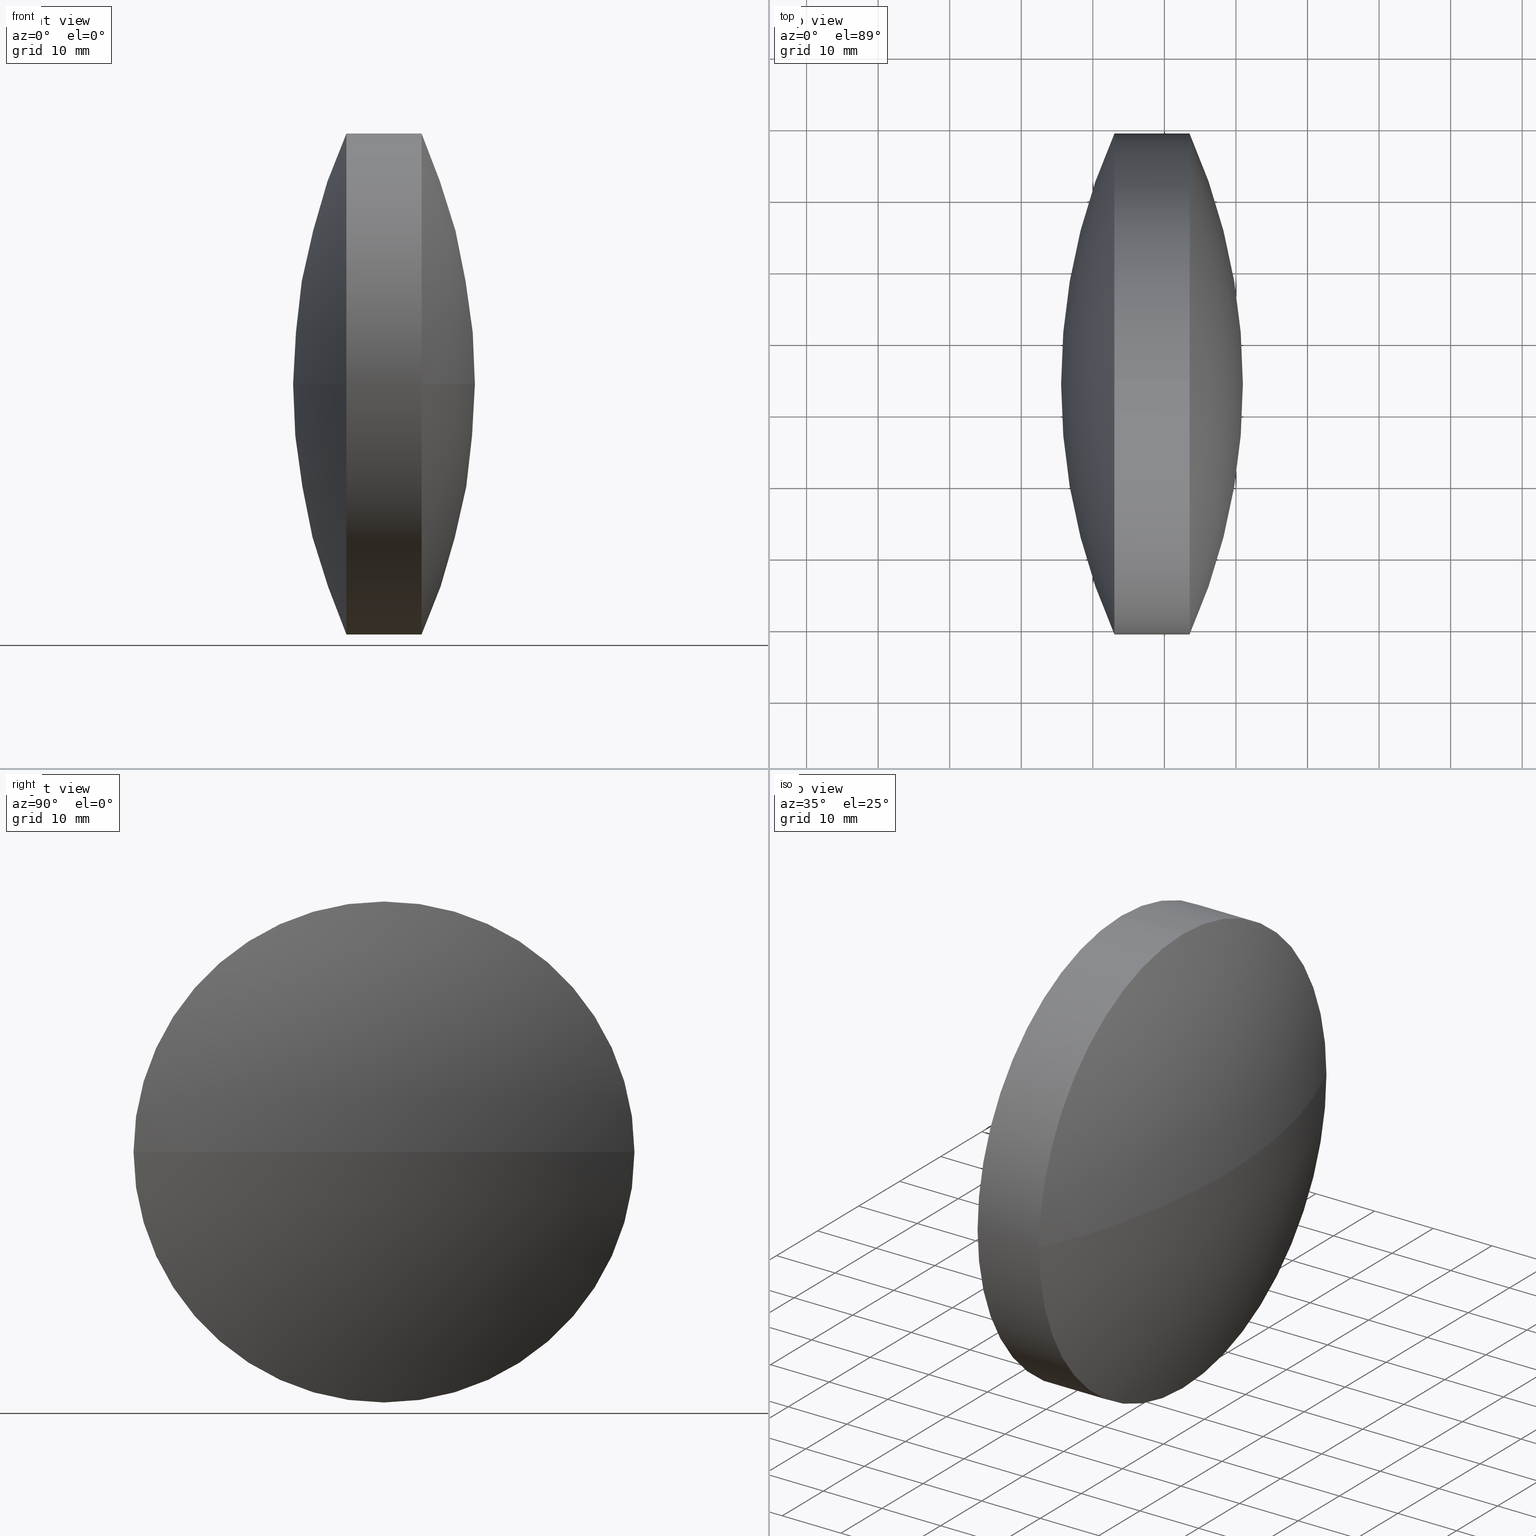
[diagram: canonical four-view strip — front | top / right | iso, engineering-drawing reading convention]
A machine part, canonical four-view strip (front | top / right | iso — engineering-drawing reading convention). The complete STEP part file that produces these views, byte-faithful:
ISO-10303-21;
HEADER;
FILE_DESCRIPTION (( 'STEP AP203' ),
    '1' );
FILE_NAME ('110010.STEP',
    '2019-06-24T09:36:01',
    ( '' ),
    ( '' ),
    'SwSTEP 2.0',
    'SolidWorks 2016',
    '' );
FILE_SCHEMA (( 'CONFIG_CONTROL_DESIGN' ));
ENDSEC;

DATA;
#1 = DATE_AND_TIME ( #64, #320 ) ;
#2 = DIRECTION ( 'NONE',  ( 0.0000000000000000000, 0.0000000000000000000, 1.000000000000000000 ) ) ;
#3 = FACE_OUTER_BOUND ( 'NONE', #324, .T. ) ;
#4 = CC_DESIGN_DATE_AND_TIME_ASSIGNMENT ( #25, #335, ( #279 ) ) ;
#5 = VERTEX_POINT ( 'NONE', #218 ) ;
#6 = DIRECTION ( 'NONE',  ( -1.000000000000000000, -0.0000000000000000000, -0.0000000000000000000 ) ) ;
#7 = PRODUCT_DEFINITION_SHAPE ( 'NONE', 'NONE',  #279 ) ;
#8 = DIRECTION ( 'NONE',  ( -1.000000000000000000, -0.0000000000000000000, -0.0000000000000000000 ) ) ;
#9 = CC_DESIGN_PERSON_AND_ORGANIZATION_ASSIGNMENT ( #318, #72, ( #57 ) ) ;
#10 = CARTESIAN_POINT ( 'NONE',  ( 233.0206127648180000, 133.9814138434226200, 0.0000000000000000000 ) ) ;
#11 = EDGE_CURVE ( 'NONE', #267, #221, #209, .T. ) ;
#12 = ORIENTED_EDGE ( 'NONE', *, *, #314, .T. ) ;
#13 = DIRECTION ( 'NONE',  ( 0.0000000000000000000, 0.0000000000000000000, 1.000000000000000000 ) ) ;
#14 = PERSON_AND_ORGANIZATION ( #70, #173 ) ;
#15 = SPHERICAL_SURFACE ( 'NONE', #102, 85.92725649641434400 ) ;
#16 = VERTEX_POINT ( 'NONE', #143 ) ;
#17 = AXIS2_PLACEMENT_3D ( 'NONE', #37, #92, #155 ) ;
#18 = CARTESIAN_POINT ( 'NONE',  ( 165.0445437437425100, 133.9814138434226400, 0.0000000000000000000 ) ) ;
#19 = AXIS2_PLACEMENT_3D ( 'NONE', #68, #199, #13 ) ;
#20 =( NAMED_UNIT ( * ) SI_UNIT ( $, .STERADIAN. ) SOLID_ANGLE_UNIT ( ) );
#21 = PERSON_AND_ORGANIZATION ( #70, #173 ) ;
#22 = PERSON_AND_ORGANIZATION_ROLE ( 'design_supplier' ) ;
#23 = ORIENTED_EDGE ( 'NONE', *, *, #59, .F. ) ;
#24 = APPROVAL_ROLE ( '' ) ;
#25 = DATE_AND_TIME ( #138, #171 ) ;
#26 = CIRCLE ( 'NONE', #265, 35.00000000000000000 ) ;
#27 = EDGE_CURVE ( 'NONE', #16, #85, #194, .T. ) ;
#28 = APPROVAL_DATE_TIME ( #274, #343 ) ;
#29 = CIRCLE ( 'NONE', #244, 35.00000000000000000 ) ;
#30 = EDGE_LOOP ( 'NONE', ( #110, #12, #140, #119 ) ) ;
#31 = DIRECTION ( 'NONE',  ( 0.0000000000000000000, 0.0000000000000000000, 1.000000000000000000 ) ) ;
#32 = DIRECTION ( 'NONE',  ( -1.000000000000000000, -0.0000000000000000000, -0.0000000000000000000 ) ) ;
#33 = CC_DESIGN_APPROVAL ( #269, ( #304 ) ) ;
#34 = AXIS2_PLACEMENT_3D ( 'NONE', #18, #125, #222 ) ;
#35 = CARTESIAN_POINT ( 'NONE',  ( 222.8966066484798600, 133.9814138434226200, -35.00000000000000000 ) ) ;
#36 = ORIENTED_EDGE ( 'NONE', *, *, #27, .F. ) ;
#37 = CARTESIAN_POINT ( 'NONE',  ( 0.0000000000000000000, 0.0000000000000000000, 0.0000000000000000000 ) ) ;
#38 = ADVANCED_BREP_SHAPE_REPRESENTATION ( '110010', ( #212, #17 ), #177 ) ;
#39 = DIRECTION ( 'NONE',  ( -1.000000000000000000, -0.0000000000000000000, -0.0000000000000000000 ) ) ;
#40 = VERTEX_POINT ( 'NONE', #137 ) ;
#41 = DIRECTION ( 'NONE',  ( -1.000000000000000000, 0.0000000000000000000, 0.0000000000000000000 ) ) ;
#42 = DIRECTION ( 'NONE',  ( 0.0000000000000000000, 1.000000000000000000, 1.224646799147353000E-016 ) ) ;
#43 = PERSON_AND_ORGANIZATION_ROLE ( 'design_owner' ) ;
#44 = LINE ( 'NONE', #95, #295 ) ;
#45 = CYLINDRICAL_SURFACE ( 'NONE', #217, 35.00000000000000000 ) ;
#46 = APPLICATION_CONTEXT ( 'configuration controlled 3d designs of mechanical parts and assemblies' ) ;
#47 = ADVANCED_FACE ( 'NONE', ( #334 ), #45, .T. ) ;
#48 = AXIS2_PLACEMENT_3D ( 'NONE', #276, #66, #122 ) ;
#49 = APPROVAL_ROLE ( '' ) ;
#50 = PERSON_AND_ORGANIZATION ( #70, #173 ) ;
#51 = APPLICATION_CONTEXT ( 'configuration controlled 3d designs of mechanical parts and assemblies' ) ;
#52 = SHAPE_DEFINITION_REPRESENTATION ( #7, #38 ) ;
#53 = EDGE_LOOP ( 'NONE', ( #317, #88, #166, #36 ) ) ;
#54 = EDGE_CURVE ( 'NONE', #233, #94, #260, .T. ) ;
#55 = CALENDAR_DATE ( 2019, 24, 6 ) ;
#56 = PERSON_AND_ORGANIZATION ( #70, #173 ) ;
#57 = PRODUCT_DEFINITION ( 'δ֪', '', #134, #231 ) ;
#58 = DIRECTION ( 'NONE',  ( 0.0000000000000000000, 0.0000000000000000000, 1.000000000000000000 ) ) ;
#59 = EDGE_CURVE ( 'NONE', #94, #5, #29, .T. ) ;
#60 = DIRECTION ( 'NONE',  ( 0.0000000000000000000, 0.0000000000000000000, 1.000000000000000000 ) ) ;
#61 = ORIENTED_EDGE ( 'NONE', *, *, #307, .T. ) ;
#62 = CARTESIAN_POINT ( 'NONE',  ( 243.5206127648180300, 133.9814138434226200, 0.0000000000000000000 ) ) ;
#63 = CARTESIAN_POINT ( 'NONE',  ( 233.0206127648180000, 133.9814138434226200, 0.0000000000000000000 ) ) ;
#64 = CALENDAR_DATE ( 2019, 24, 6 ) ;
#65 = COORDINATED_UNIVERSAL_TIME_OFFSET ( 8, 0, .AHEAD. ) ;
#66 = DIRECTION ( 'NONE',  ( -0.0000000000000000000, 0.0000000000000000000, -1.000000000000000000 ) ) ;
#67 = CARTESIAN_POINT ( 'NONE',  ( 243.5206127648180300, 168.9814138434226400, 4.286263797015734100E-015 ) ) ;
#68 = CARTESIAN_POINT ( 'NONE',  ( 243.5206127648180300, 133.9814138434226200, 0.0000000000000000000 ) ) ;
#69 = APPROVAL_PERSON_ORGANIZATION ( #56, #172, #49 ) ;
#70 = PERSON ( 'δָ��', 'δָ��', 'δָ��', ('δָ��'), ('δָ��'), ('δָ��') ) ;
#71 = ORIENTED_EDGE ( 'NONE', *, *, #210, .F. ) ;
#72 = PERSON_AND_ORGANIZATION_ROLE ( 'creator' ) ;
#73 = DATE_TIME_ROLE ( 'classification_date' ) ;
#74 = SECURITY_CLASSIFICATION ( '', '', #205 ) ;
#75 = PERSON_AND_ORGANIZATION ( #70, #173 ) ;
#76 = CC_DESIGN_PERSON_AND_ORGANIZATION_ASSIGNMENT ( #253, #186, ( #304 ) ) ;
#77 = APPROVAL_ROLE ( '' ) ;
#78 = APPROVAL ( #229, 'δָ��' ) ;
#79 = APPROVAL_DATE_TIME ( #135, #112 ) ;
#80 = EDGE_LOOP ( 'NONE', ( #211, #227, #154, #309, #282, #23 ) ) ;
#81 = EDGE_CURVE ( 'NONE', #40, #267, #338, .T. ) ;
#82 = CC_DESIGN_APPROVAL ( #112, ( #74 ) ) ;
#83 = COORDINATED_UNIVERSAL_TIME_OFFSET ( 8, 0, .AHEAD. ) ;
#84 = SPHERICAL_SURFACE ( 'NONE', #48, 85.92725649641434400 ) ;
#85 = VERTEX_POINT ( 'NONE', #322 ) ;
#86 = AXIS2_PLACEMENT_3D ( 'NONE', #298, #58, #141 ) ;
#87 = PERSON_AND_ORGANIZATION ( #70, #173 ) ;
#88 = ORIENTED_EDGE ( 'NONE', *, *, #59, .T. ) ;
#89 = DIRECTION ( 'NONE',  ( 0.0000000000000000000, 0.0000000000000000000, 1.000000000000000000 ) ) ;
#90 = DIRECTION ( 'NONE',  ( 0.0000000000000000000, 1.224646799147353200E-016, -1.000000000000000000 ) ) ;
#91 = CC_DESIGN_PERSON_AND_ORGANIZATION_ASSIGNMENT ( #266, #43, ( #157 ) ) ;
#92 = DIRECTION ( 'NONE',  ( 0.0000000000000000000, 0.0000000000000000000, 1.000000000000000000 ) ) ;
#93 = COORDINATED_UNIVERSAL_TIME_OFFSET ( 8, 0, .AHEAD. ) ;
#94 = VERTEX_POINT ( 'NONE', #248 ) ;
#95 = CARTESIAN_POINT ( 'NONE',  ( 222.8966066484798600, 133.9814138434226200, 35.00000000000000000 ) ) ;
#96 = CARTESIAN_POINT ( 'NONE',  ( 250.9718002401569700, 133.9814138434226400, 0.0000000000000000000 ) ) ;
#97 = PRODUCT_RELATED_PRODUCT_CATEGORY ( 'detail', '', ( #185 ) ) ;
#98 = APPROVAL_PERSON_ORGANIZATION ( #75, #269, #24 ) ;
#99 = APPROVAL_ROLE ( '' ) ;
#100 = ORIENTED_EDGE ( 'NONE', *, *, #54, .T. ) ;
#101 = APPLICATION_PROTOCOL_DEFINITION ( 'international standard', 'config_control_design', 1994, #46 ) ;
#102 = AXIS2_PLACEMENT_3D ( 'NONE', #305, #153, #277 ) ;
#103 = SECURITY_CLASSIFICATION_LEVEL ( 'unclassified' ) ;
#104 = CIRCLE ( 'NONE', #19, 35.00000000000000000 ) ;
#105 = APPROVAL ( #261, 'δָ��' ) ;
#106 = ORIENTED_EDGE ( 'NONE', *, *, #307, .F. ) ;
#107 = DESIGN_CONTEXT ( 'detailed design', #46, 'design' ) ;
#108 = PERSON_AND_ORGANIZATION ( #70, #173 ) ;
#109 = AXIS2_PLACEMENT_3D ( 'NONE', #300, #148, #223 ) ;
#110 = ORIENTED_EDGE ( 'NONE', *, *, #268, .F. ) ;
#111 = PRODUCT_DEFINITION_FORMATION_WITH_SPECIFIED_SOURCE ( '�κ�', '', #157, .NOT_KNOWN. ) ;
#112 = APPROVAL ( #228, 'δָ��' ) ;
#113 = ORIENTED_EDGE ( 'NONE', *, *, #27, .T. ) ;
#114 = AXIS2_PLACEMENT_3D ( 'NONE', #303, #163, #204 ) ;
#115 = CARTESIAN_POINT ( 'NONE',  ( 243.5206127648180300, 133.9814138434226200, 0.0000000000000000000 ) ) ;
#116 = EDGE_CURVE ( 'NONE', #221, #233, #187, .T. ) ;
#117 = CC_DESIGN_PERSON_AND_ORGANIZATION_ASSIGNMENT ( #206, #181, ( #111 ) ) ;
#118 = CIRCLE ( 'NONE', #342, 35.00000000000000000 ) ;
#119 = ORIENTED_EDGE ( 'NONE', *, *, #116, .F. ) ;
#120 = CC_DESIGN_APPROVAL ( #78, ( #57 ) ) ;
#121 = AXIS2_PLACEMENT_3D ( 'NONE', #178, #257, #196 ) ;
#122 = DIRECTION ( 'NONE',  ( 0.0000000000000000000, 1.000000000000000000, 0.0000000000000000000 ) ) ;
#123 = CALENDAR_DATE ( 2019, 24, 6 ) ;
#124 = CARTESIAN_POINT ( 'NONE',  ( 233.0206127648180000, 133.9814138434226200, 0.0000000000000000000 ) ) ;
#125 = DIRECTION ( 'NONE',  ( 0.0000000000000000000, 0.0000000000000000000, 1.000000000000000000 ) ) ;
#126 = APPROVAL_DATE_TIME ( #201, #172 ) ;
#127 = AXIS2_PLACEMENT_3D ( 'NONE', #251, #90, #42 ) ;
#128 = PERSON_AND_ORGANIZATION_ROLE ( 'design_owner' ) ;
#129 = APPLICATION_CONTEXT ( 'configuration controlled 3d designs of mechanical parts and assemblies' ) ;
#130 = PRODUCT_RELATED_PRODUCT_CATEGORY ( 'detail', '', ( #157 ) ) ;
#131 = APPROVAL_STATUS ( 'not_yet_approved' ) ;
#132 = PERSON_AND_ORGANIZATION ( #70, #173 ) ;
#133 = CC_DESIGN_PERSON_AND_ORGANIZATION_ASSIGNMENT ( #225, #339, ( #74 ) ) ;
#134 = PRODUCT_DEFINITION_FORMATION_WITH_SPECIFIED_SOURCE ( '�κ�', '', #185, .NOT_KNOWN. ) ;
#135 = DATE_AND_TIME ( #291, #288 ) ;
#136 = APPROVAL_PERSON_ORGANIZATION ( #289, #78, #77 ) ;
#137 = CARTESIAN_POINT ( 'NONE',  ( 243.5206127648180300, 98.98141384342261500, 0.0000000000000000000 ) ) ;
#138 = CALENDAR_DATE ( 2019, 24, 6 ) ;
#139 = DATE_AND_TIME ( #321, #152 ) ;
#140 = ORIENTED_EDGE ( 'NONE', *, *, #249, .F. ) ;
#141 = DIRECTION ( 'NONE',  ( 0.0000000000000000000, -1.000000000000000000, 0.0000000000000000000 ) ) ;
#142 = CC_DESIGN_PERSON_AND_ORGANIZATION_ASSIGNMENT ( #132, #287, ( #134 ) ) ;
#143 = CARTESIAN_POINT ( 'NONE',  ( 233.0206127648180000, 168.9814138434226200, 0.0000000000000000000 ) ) ;
#144 = DIRECTION ( 'NONE',  ( -0.0000000000000000000, 0.0000000000000000000, 1.000000000000000000 ) ) ;
#145 = DIRECTION ( 'NONE',  ( -1.000000000000000000, -0.0000000000000000000, -0.0000000000000000000 ) ) ;
#146 = DATE_AND_TIME ( #164, #176 ) ;
#147 = ORIENTED_EDGE ( 'NONE', *, *, #81, .F. ) ;
#148 = DIRECTION ( 'NONE',  ( 0.0000000000000000000, -1.224646799147353200E-016, 1.000000000000000000 ) ) ;
#149 = CARTESIAN_POINT ( 'NONE',  ( 243.5206127648180300, 133.9814138434226200, 35.00000000000000000 ) ) ;
#150 = CC_DESIGN_PERSON_AND_ORGANIZATION_ASSIGNMENT ( #108, #128, ( #185 ) ) ;
#151 = CARTESIAN_POINT ( 'NONE',  ( 165.0445437437425100, 133.9814138434226400, 0.0000000000000000000 ) ) ;
#152 = LOCAL_TIME ( 17, 36, 1.000000000000000000, #264 ) ;
#153 = DIRECTION ( 'NONE',  ( -0.0000000000000000000, 0.0000000000000000000, -1.000000000000000000 ) ) ;
#154 = ORIENTED_EDGE ( 'NONE', *, *, #81, .T. ) ;
#155 = DIRECTION ( 'NONE',  ( 1.000000000000000000, 0.0000000000000000000, 0.0000000000000000000 ) ) ;
#156 = CC_DESIGN_DATE_AND_TIME_ASSIGNMENT ( #146, #158, ( #74 ) ) ;
#157 = PRODUCT ( '110010', '110010', '', ( #159 ) ) ;
#158 = DATE_TIME_ROLE ( 'classification_date' ) ;
#159 = MECHANICAL_CONTEXT ( 'NONE', #51, 'mechanical' ) ;
#160 = COORDINATED_UNIVERSAL_TIME_OFFSET ( 8, 0, .AHEAD. ) ;
#161 = ORIENTED_EDGE ( 'NONE', *, *, #188, .T. ) ;
#162 = APPLICATION_PROTOCOL_DEFINITION ( 'international standard', 'config_control_design', 1994, #129 ) ;
#163 = DIRECTION ( 'NONE',  ( 0.0000000000000000000, 0.0000000000000000000, 1.000000000000000000 ) ) ;
#164 = CALENDAR_DATE ( 2019, 24, 6 ) ;
#165 = FACE_OUTER_BOUND ( 'NONE', #30, .T. ) ;
#166 = ORIENTED_EDGE ( 'NONE', *, *, #292, .T. ) ;
#167 = CC_DESIGN_SECURITY_CLASSIFICATION ( #304, ( #134 ) ) ;
#168 = APPROVAL_DATE_TIME ( #337, #105 ) ;
#169 = ORIENTED_EDGE ( 'NONE', *, *, #314, .F. ) ;
#170 = CC_DESIGN_SECURITY_CLASSIFICATION ( #74, ( #111 ) ) ;
#171 = LOCAL_TIME ( 17, 36, 1.000000000000000000, #160 ) ;
#172 = APPROVAL ( #336, 'δָ��' ) ;
#173 = ORGANIZATION ( 'δָ��', 'δָ��', '' ) ;
#174 = ORIENTED_EDGE ( 'NONE', *, *, #232, .F. ) ;
#175 = CC_DESIGN_PERSON_AND_ORGANIZATION_ASSIGNMENT ( #50, #22, ( #111 ) ) ;
#176 = LOCAL_TIME ( 17, 36, 1.000000000000000000, #294 ) ;
#177 =( GEOMETRIC_REPRESENTATION_CONTEXT ( 3 ) GLOBAL_UNCERTAINTY_ASSIGNED_CONTEXT ( ( #293 ) ) GLOBAL_UNIT_ASSIGNED_CONTEXT ( ( #301, #306, #20 ) ) REPRESENTATION_CONTEXT ( 'NONE', 'WORKASPACE' ) );
#178 = CARTESIAN_POINT ( 'NONE',  ( 222.8966066484798600, 133.9814138434226200, 0.0000000000000000000 ) ) ;
#179 = DIRECTION ( 'NONE',  ( -1.000000000000000000, -0.0000000000000000000, -0.0000000000000000000 ) ) ;
#180 = APPROVAL_PERSON_ORGANIZATION ( #87, #112, #235 ) ;
#181 = PERSON_AND_ORGANIZATION_ROLE ( 'creator' ) ;
#182 = CALENDAR_DATE ( 2019, 24, 6 ) ;
#183 = ADVANCED_FACE ( 'NONE', ( #3 ), #271, .T. ) ;
#184 = APPLICATION_PROTOCOL_DEFINITION ( 'international standard', 'config_control_design', 1994, #51 ) ;
#185 = PRODUCT ( '110010', '110010', '', ( #259 ) ) ;
#186 = PERSON_AND_ORGANIZATION_ROLE ( 'classification_officer' ) ;
#187 = CIRCLE ( 'NONE', #238, 35.00000000000000000 ) ;
#188 = EDGE_CURVE ( 'NONE', #5, #236, #26, .T. ) ;
#189 = CIRCLE ( 'NONE', #109, 85.92725649641450000 ) ;
#190 = VECTOR ( 'NONE', #273, 1000.000000000000000 ) ;
#191 = APPROVAL_PERSON_ORGANIZATION ( #14, #343, #234 ) ;
#192 = LOCAL_TIME ( 17, 36, 1.000000000000000000, #65 ) ;
#193 = APPROVAL_DATE_TIME ( #139, #78 ) ;
#194 = CIRCLE ( 'NONE', #224, 85.92725649641435800 ) ;
#195 = DIRECTION ( 'NONE',  ( -1.000000000000000000, -0.0000000000000000000, -0.0000000000000000000 ) ) ;
#196 = DIRECTION ( 'NONE',  ( 0.0000000000000000000, 0.0000000000000000000, 1.000000000000000000 ) ) ;
#197 = CC_DESIGN_APPROVAL ( #105, ( #279 ) ) ;
#198 = DIRECTION ( 'NONE',  ( 0.0000000000000000000, 0.0000000000000000000, -1.000000000000000000 ) ) ;
#199 = DIRECTION ( 'NONE',  ( -1.000000000000000000, -0.0000000000000000000, -0.0000000000000000000 ) ) ;
#200 = ADVANCED_FACE ( 'NONE', ( #226 ), #15, .T. ) ;
#201 = DATE_AND_TIME ( #123, #341 ) ;
#202 = AXIS2_PLACEMENT_3D ( 'NONE', #62, #8, #31 ) ;
#203 = ORIENTED_EDGE ( 'NONE', *, *, #268, .T. ) ;
#204 = DIRECTION ( 'NONE',  ( 1.000000000000000000, 0.0000000000000000000, 0.0000000000000000000 ) ) ;
#205 = SECURITY_CLASSIFICATION_LEVEL ( 'unclassified' ) ;
#206 = PERSON_AND_ORGANIZATION ( #70, #173 ) ;
#207 = LOCAL_TIME ( 17, 36, 1.000000000000000000, #83 ) ;
#208 = SPHERICAL_SURFACE ( 'NONE', #34, 85.92725649641450000 ) ;
#209 = CIRCLE ( 'NONE', #202, 35.00000000000000000 ) ;
#210 = EDGE_CURVE ( 'NONE', #267, #236, #44, .T. ) ;
#211 = ORIENTED_EDGE ( 'NONE', *, *, #54, .F. ) ;
#212 = MANIFOLD_SOLID_BREP ( '��ת1', #247 ) ;
#213 = CARTESIAN_POINT ( 'NONE',  ( 222.8966066484798600, 133.9814138434226200, 0.0000000000000000000 ) ) ;
#214 = CC_DESIGN_DATE_AND_TIME_ASSIGNMENT ( #315, #73, ( #304 ) ) ;
#215 = CYLINDRICAL_SURFACE ( 'NONE', #121, 35.00000000000000000 ) ;
#216 = ORIENTED_EDGE ( 'NONE', *, *, #292, .F. ) ;
#217 = AXIS2_PLACEMENT_3D ( 'NONE', #213, #6, #323 ) ;
#218 = CARTESIAN_POINT ( 'NONE',  ( 233.0206127648180000, 98.98141384342260100, -4.286263797015736500E-015 ) ) ;
#219 = CC_DESIGN_PERSON_AND_ORGANIZATION_ASSIGNMENT ( #332, #310, ( #134 ) ) ;
#220 = APPROVAL_PERSON_ORGANIZATION ( #21, #105, #99 ) ;
#221 = VERTEX_POINT ( 'NONE', #67 ) ;
#222 = DIRECTION ( 'NONE',  ( 0.0000000000000000000, -1.000000000000000000, 0.0000000000000000000 ) ) ;
#223 = DIRECTION ( 'NONE',  ( 0.0000000000000000000, -1.000000000000000000, -1.224646799147353200E-016 ) ) ;
#224 = AXIS2_PLACEMENT_3D ( 'NONE', #246, #144, #270 ) ;
#225 = PERSON_AND_ORGANIZATION ( #70, #173 ) ;
#226 = FACE_OUTER_BOUND ( 'NONE', #53, .T. ) ;
#227 = ORIENTED_EDGE ( 'NONE', *, *, #249, .T. ) ;
#228 = APPROVAL_STATUS ( 'not_yet_approved' ) ;
#229 = APPROVAL_STATUS ( 'not_yet_approved' ) ;
#230 = PERSON_AND_ORGANIZATION ( #70, #173 ) ;
#231 = DESIGN_CONTEXT ( 'detailed design', #129, 'design' ) ;
#232 = EDGE_CURVE ( 'NONE', #16, #94, #118, .T. ) ;
#233 = VERTEX_POINT ( 'NONE', #256 ) ;
#234 = APPROVAL_ROLE ( '' ) ;
#235 = APPROVAL_ROLE ( '' ) ;
#236 = VERTEX_POINT ( 'NONE', #330 ) ;
#237 = ADVANCED_FACE ( 'NONE', ( #165 ), #208, .T. ) ;
#238 = AXIS2_PLACEMENT_3D ( 'NONE', #115, #32, #245 ) ;
#239 = APPROVAL_DATE_TIME ( #1, #269 ) ;
#240 = ORIENTED_EDGE ( 'NONE', *, *, #11, .T. ) ;
#241 = COORDINATED_UNIVERSAL_TIME_OFFSET ( 8, 0, .AHEAD. ) ;
#242 = CIRCLE ( 'NONE', #255, 85.92725649641450000 ) ;
#243 = ORIENTED_EDGE ( 'NONE', *, *, #11, .F. ) ;
#244 = AXIS2_PLACEMENT_3D ( 'NONE', #10, #195, #2 ) ;
#245 = DIRECTION ( 'NONE',  ( 0.0000000000000000000, 0.0000000000000000000, 1.000000000000000000 ) ) ;
#246 = CARTESIAN_POINT ( 'NONE',  ( 311.4966817858933700, 133.9814138434226200, 0.0000000000000000000 ) ) ;
#247 = CLOSED_SHELL ( 'NONE', ( #284, #183, #200, #262, #237, #47 ) ) ;
#248 = CARTESIAN_POINT ( 'NONE',  ( 233.0206127648180000, 133.9814138434226200, -35.00000000000000000 ) ) ;
#249 = EDGE_CURVE ( 'NONE', #233, #40, #104, .T. ) ;
#250 = DIRECTION ( 'NONE',  ( 0.0000000000000000000, 0.0000000000000000000, 1.000000000000000000 ) ) ;
#251 = CARTESIAN_POINT ( 'NONE',  ( 311.4966817858933700, 133.9814138434226200, 0.0000000000000000000 ) ) ;
#252 = CC_DESIGN_APPROVAL ( #343, ( #111 ) ) ;
#253 = PERSON_AND_ORGANIZATION ( #70, #173 ) ;
#254 = DIRECTION ( 'NONE',  ( 0.0000000000000000000, 0.0000000000000000000, 1.000000000000000000 ) ) ;
#255 = AXIS2_PLACEMENT_3D ( 'NONE', #151, #198, #41 ) ;
#256 = CARTESIAN_POINT ( 'NONE',  ( 243.5206127648180300, 133.9814138434226200, -35.00000000000000000 ) ) ;
#257 = DIRECTION ( 'NONE',  ( -1.000000000000000000, -0.0000000000000000000, -0.0000000000000000000 ) ) ;
#258 = DATE_AND_TIME ( #182, #192 ) ;
#259 = MECHANICAL_CONTEXT ( 'NONE', #333, 'mechanical' ) ;
#260 = LINE ( 'NONE', #35, #190 ) ;
#261 = APPROVAL_STATUS ( 'not_yet_approved' ) ;
#262 = ADVANCED_FACE ( 'NONE', ( #327 ), #84, .T. ) ;
#263 = DATE_TIME_ROLE ( 'creation_date' ) ;
#264 = COORDINATED_UNIVERSAL_TIME_OFFSET ( 8, 0, .AHEAD. ) ;
#265 = AXIS2_PLACEMENT_3D ( 'NONE', #63, #145, #250 ) ;
#266 = PERSON_AND_ORGANIZATION ( #70, #173 ) ;
#267 = VERTEX_POINT ( 'NONE', #149 ) ;
#268 = EDGE_CURVE ( 'NONE', #272, #221, #189, .T. ) ;
#269 = APPROVAL ( #131, 'δָ��' ) ;
#270 = DIRECTION ( 'NONE',  ( 1.000000000000000000, 0.0000000000000000000, 0.0000000000000000000 ) ) ;
#271 = SPHERICAL_SURFACE ( 'NONE', #86, 85.92725649641450000 ) ;
#272 = VERTEX_POINT ( 'NONE', #96 ) ;
#273 = DIRECTION ( 'NONE',  ( -1.000000000000000000, -0.0000000000000000000, -0.0000000000000000000 ) ) ;
#274 = DATE_AND_TIME ( #326, #299 ) ;
#275 = COORDINATED_UNIVERSAL_TIME_OFFSET ( 8, 0, .AHEAD. ) ;
#276 = CARTESIAN_POINT ( 'NONE',  ( 311.4966817858933700, 133.9814138434226200, 0.0000000000000000000 ) ) ;
#277 = DIRECTION ( 'NONE',  ( 0.0000000000000000000, 1.000000000000000000, 0.0000000000000000000 ) ) ;
#278 = AXIS2_PLACEMENT_3D ( 'NONE', #328, #179, #254 ) ;
#279 = PRODUCT_DEFINITION ( 'δ֪', '', #111, #107 ) ;
#280 = CALENDAR_DATE ( 2019, 24, 6 ) ;
#281 = CIRCLE ( 'NONE', #127, 85.92725649641435800 ) ;
#282 = ORIENTED_EDGE ( 'NONE', *, *, #188, .F. ) ;
#283 = CC_DESIGN_APPROVAL ( #172, ( #134 ) ) ;
#284 = ADVANCED_FACE ( 'NONE', ( #316 ), #215, .T. ) ;
#285 = PERSON_AND_ORGANIZATION_ROLE ( 'creator' ) ;
#286 = EDGE_LOOP ( 'NONE', ( #319, #100, #174, #106, #71, #240 ) ) ;
#287 = PERSON_AND_ORGANIZATION_ROLE ( 'design_supplier' ) ;
#288 = LOCAL_TIME ( 17, 36, 1.000000000000000000, #344 ) ;
#289 = PERSON_AND_ORGANIZATION ( #70, #173 ) ;
#290 = EDGE_LOOP ( 'NONE', ( #216, #161, #61, #113 ) ) ;
#291 = CALENDAR_DATE ( 2019, 24, 6 ) ;
#292 = EDGE_CURVE ( 'NONE', #5, #85, #281, .T. ) ;
#293 = UNCERTAINTY_MEASURE_WITH_UNIT (LENGTH_MEASURE( 1.000000000000000100E-005 ), #301, 'distance_accuracy_value', 'NONE');
#294 = COORDINATED_UNIVERSAL_TIME_OFFSET ( 8, 0, .AHEAD. ) ;
#295 = VECTOR ( 'NONE', #39, 1000.000000000000000 ) ;
#296 = AXIS2_PLACEMENT_3D ( 'NONE', #297, #325, #60 ) ;
#297 = CARTESIAN_POINT ( 'NONE',  ( 243.5206127648180300, 133.9814138434226200, 0.0000000000000000000 ) ) ;
#298 = CARTESIAN_POINT ( 'NONE',  ( 165.0445437437425100, 133.9814138434226400, 0.0000000000000000000 ) ) ;
#299 = LOCAL_TIME ( 17, 36, 1.000000000000000000, #93 ) ;
#300 = CARTESIAN_POINT ( 'NONE',  ( 165.0445437437425100, 133.9814138434226400, 0.0000000000000000000 ) ) ;
#301 =( LENGTH_UNIT ( ) NAMED_UNIT ( * ) SI_UNIT ( .MILLI., .METRE. ) );
#302 = CIRCLE ( 'NONE', #278, 35.00000000000000000 ) ;
#303 = CARTESIAN_POINT ( 'NONE',  ( 0.0000000000000000000, 0.0000000000000000000, 0.0000000000000000000 ) ) ;
#304 = SECURITY_CLASSIFICATION ( '', '', #103 ) ;
#305 = CARTESIAN_POINT ( 'NONE',  ( 311.4966817858933700, 133.9814138434226200, 0.0000000000000000000 ) ) ;
#306 =( NAMED_UNIT ( * ) PLANE_ANGLE_UNIT ( ) SI_UNIT ( $, .RADIAN. ) );
#307 = EDGE_CURVE ( 'NONE', #236, #16, #302, .T. ) ;
#308 = LOCAL_TIME ( 17, 36, 1.000000000000000000, #275 ) ;
#309 = ORIENTED_EDGE ( 'NONE', *, *, #210, .T. ) ;
#310 = PERSON_AND_ORGANIZATION_ROLE ( 'creator' ) ;
#311 = CC_DESIGN_DATE_AND_TIME_ASSIGNMENT ( #258, #263, ( #57 ) ) ;
#312 = APPLICATION_PROTOCOL_DEFINITION ( 'international standard', 'config_control_design', 1994, #333 ) ;
#313 = APPROVAL_STATUS ( 'not_yet_approved' ) ;
#314 = EDGE_CURVE ( 'NONE', #272, #40, #242, .T. ) ;
#315 = DATE_AND_TIME ( #280, #308 ) ;
#316 = FACE_OUTER_BOUND ( 'NONE', #286, .T. ) ;
#317 = ORIENTED_EDGE ( 'NONE', *, *, #232, .T. ) ;
#318 = PERSON_AND_ORGANIZATION ( #70, #173 ) ;
#319 = ORIENTED_EDGE ( 'NONE', *, *, #116, .T. ) ;
#320 = LOCAL_TIME ( 17, 36, 1.000000000000000000, #241 ) ;
#321 = CALENDAR_DATE ( 2019, 24, 6 ) ;
#322 = CARTESIAN_POINT ( 'NONE',  ( 225.5694252894790000, 133.9814138434226200, 0.0000000000000000000 ) ) ;
#323 = DIRECTION ( 'NONE',  ( 0.0000000000000000000, 0.0000000000000000000, 1.000000000000000000 ) ) ;
#324 = EDGE_LOOP ( 'NONE', ( #169, #203, #243, #147 ) ) ;
#325 = DIRECTION ( 'NONE',  ( -1.000000000000000000, -0.0000000000000000000, -0.0000000000000000000 ) ) ;
#326 = CALENDAR_DATE ( 2019, 24, 6 ) ;
#327 = FACE_OUTER_BOUND ( 'NONE', #290, .T. ) ;
#328 = CARTESIAN_POINT ( 'NONE',  ( 233.0206127648180000, 133.9814138434226200, 0.0000000000000000000 ) ) ;
#329 = DIRECTION ( 'NONE',  ( -1.000000000000000000, -0.0000000000000000000, -0.0000000000000000000 ) ) ;
#330 = CARTESIAN_POINT ( 'NONE',  ( 233.0206127648180000, 133.9814138434226200, 35.00000000000000000 ) ) ;
#331 = CC_DESIGN_PERSON_AND_ORGANIZATION_ASSIGNMENT ( #230, #285, ( #279 ) ) ;
#332 = PERSON_AND_ORGANIZATION ( #70, #173 ) ;
#333 = APPLICATION_CONTEXT ( 'configuration controlled 3d designs of mechanical parts and assemblies' ) ;
#334 = FACE_OUTER_BOUND ( 'NONE', #80, .T. ) ;
#335 = DATE_TIME_ROLE ( 'creation_date' ) ;
#336 = APPROVAL_STATUS ( 'not_yet_approved' ) ;
#337 = DATE_AND_TIME ( #55, #207 ) ;
#338 = CIRCLE ( 'NONE', #296, 35.00000000000000000 ) ;
#339 = PERSON_AND_ORGANIZATION_ROLE ( 'classification_officer' ) ;
#340 = PRODUCT_DEFINITION_SHAPE ( 'NONE', 'NONE',  #57 ) ;
#341 = LOCAL_TIME ( 17, 36, 1.000000000000000000, #345 ) ;
#342 = AXIS2_PLACEMENT_3D ( 'NONE', #124, #329, #89 ) ;
#343 = APPROVAL ( #313, 'δָ��' ) ;
#344 = COORDINATED_UNIVERSAL_TIME_OFFSET ( 8, 0, .AHEAD. ) ;
#345 = COORDINATED_UNIVERSAL_TIME_OFFSET ( 8, 0, .AHEAD. ) ;
ENDSEC;
END-ISO-10303-21;
